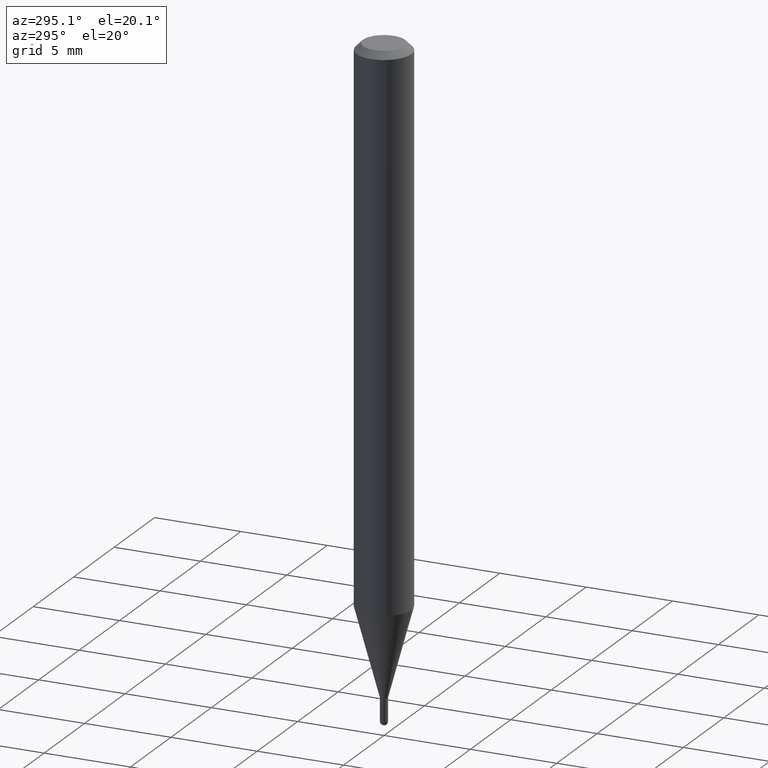
[diagram: clean part render]
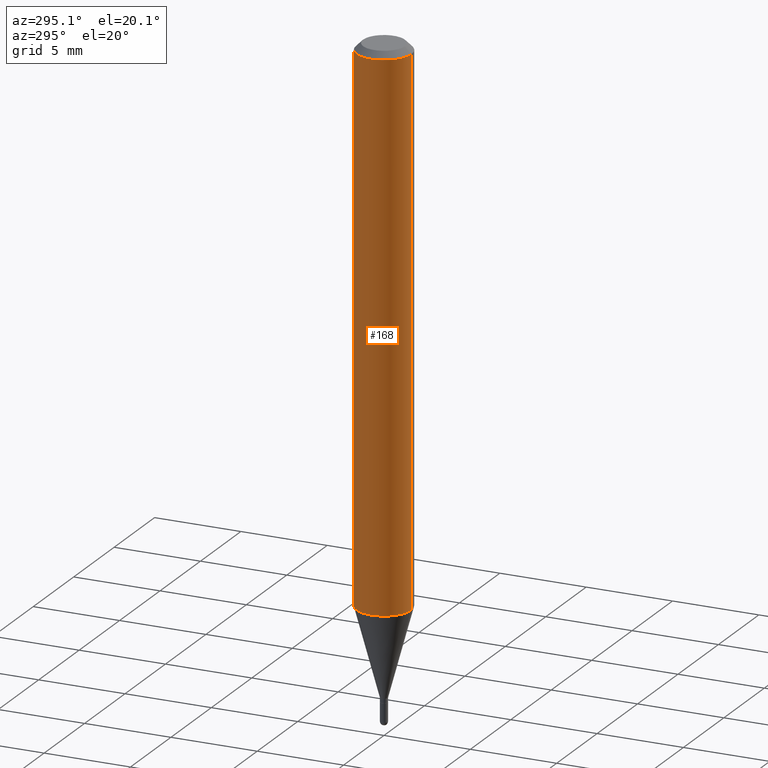
[diagram: same view with one face highlighted and labeled with its STEP entity id]
A machine part, auxiliary view. The second image highlights one B-rep face of the part: STEP entity #168.
In plain terms, the highlighted cylindrical surface (edge-blend (fillet) strip) has radius 1.5875 mm, axis along (-0, 0, 1).
Its self-contained STEP definition (entity closure, byte-faithful):
#34 = CARTESIAN_POINT ( 'NONE',  ( 4.440892098500927901E-16, 0.06249999999999569095, -1.237469256391281691 ) ) ;
#44 = AXIS2_PLACEMENT_3D ( 'NONE', #474, #166, #119 ) ;
#50 = FACE_OUTER_BOUND ( 'NONE', #448, .T. ) ;
#68 = DIRECTION ( 'NONE',  ( -2.445453638113980457E-29, 3.491503060384354605E-15, 1.000000000000000000 ) ) ;
#77 = DIRECTION ( 'NONE',  ( -6.982962677686265922E-15, -1.000000000000000000, 4.370956789862821150E-15 ) ) ;
#90 = CIRCLE ( 'NONE', #44, 0.06250000000000000000 ) ;
#92 = EDGE_CURVE ( 'NONE', #353, #400, #90, .T. ) ;
#94 = AXIS2_PLACEMENT_3D ( 'NONE', #250, #488, #412 ) ;
#107 = CARTESIAN_POINT ( 'NONE',  ( -4.364351673553912750E-16, -0.06250000000000005551, -0.01499999999999979128 ) ) ;
#113 = VECTOR ( 'NONE', #68, 39.37007874015748143 ) ;
#119 = DIRECTION ( 'NONE',  ( -6.982962677686265922E-15, -1.000000000000000000, 3.483106191921935554E-15 ) ) ;
#120 = ORIENTED_EDGE ( 'NONE', *, *, #316, .T. ) ;
#151 = CARTESIAN_POINT ( 'NONE',  ( -4.364351673553615448E-16, -0.06250000000000432987, -1.237469256391281025 ) ) ;
#166 = DIRECTION ( 'NONE',  ( -2.445453638113980177E-29, 3.491503060384354605E-15, 1.000000000000000000 ) ) ;
#168 = ADVANCED_FACE ( 'NONE', ( #50 ), #333, .T. ) ;
#179 = VERTEX_POINT ( 'NONE', #151 ) ;
#226 = CARTESIAN_POINT ( 'NONE',  ( 4.440892098500625669E-16, 0.06250000000000000000, -2.182189412740221628E-16 ) ) ;
#230 = DIRECTION ( 'NONE',  ( -2.445453638113980457E-29, 3.491503060384354605E-15, 1.000000000000000000 ) ) ;
#233 = CARTESIAN_POINT ( 'NONE',  ( -4.364351673553916201E-16, -0.06250000000000000000, 2.182189412740221628E-16 ) ) ;
#250 = CARTESIAN_POINT ( 'NONE',  ( 0.000000000000000000, 0.000000000000000000, 0.000000000000000000 ) ) ;
#260 = ORIENTED_EDGE ( 'NONE', *, *, #391, .T. ) ;
#264 = ORIENTED_EDGE ( 'NONE', *, *, #423, .F. ) ;
#297 = VERTEX_POINT ( 'NONE', #34 ) ;
#316 = EDGE_CURVE ( 'NONE', #297, #179, #447, .T. ) ;
#333 = CYLINDRICAL_SURFACE ( 'NONE', #94, 0.06250000000000000000 ) ;
#347 = AXIS2_PLACEMENT_3D ( 'NONE', #434, #381, #77 ) ;
#353 = VERTEX_POINT ( 'NONE', #420 ) ;
#381 = DIRECTION ( 'NONE',  ( -2.445453638113980177E-29, 3.491503060384354605E-15, 1.000000000000000000 ) ) ;
#391 = EDGE_CURVE ( 'NONE', #179, #400, #426, .T. ) ;
#400 = VERTEX_POINT ( 'NONE', #107 ) ;
#410 = VECTOR ( 'NONE', #230, 39.37007874015748143 ) ;
#412 = DIRECTION ( 'NONE',  ( -6.982962677686265922E-15, -1.000000000000000000, 3.491503060384354605E-15 ) ) ;
#420 = CARTESIAN_POINT ( 'NONE',  ( 4.440892098500930859E-16, 0.06249999999999995143, -0.01500000000000022669 ) ) ;
#423 = EDGE_CURVE ( 'NONE', #297, #353, #433, .T. ) ;
#426 = LINE ( 'NONE', #233, #113 ) ;
#433 = LINE ( 'NONE', #226, #410 ) ;
#434 = CARTESIAN_POINT ( 'NONE',  ( 3.026173695096260823E-29, -4.320627695821710436E-15, -1.237469256391281247 ) ) ;
#447 = CIRCLE ( 'NONE', #347, 0.06250000000000000000 ) ;
#448 = EDGE_LOOP ( 'NONE', ( #264, #120, #260, #455 ) ) ;
#455 = ORIENTED_EDGE ( 'NONE', *, *, #92, .F. ) ;
#474 = CARTESIAN_POINT ( 'NONE',  ( 3.668180457170972613E-31, -5.237254590576535705E-17, -0.01500000000000000812 ) ) ;
#488 = DIRECTION ( 'NONE',  ( -2.445453638113980177E-29, 3.491503060384354605E-15, 1.000000000000000000 ) ) ;